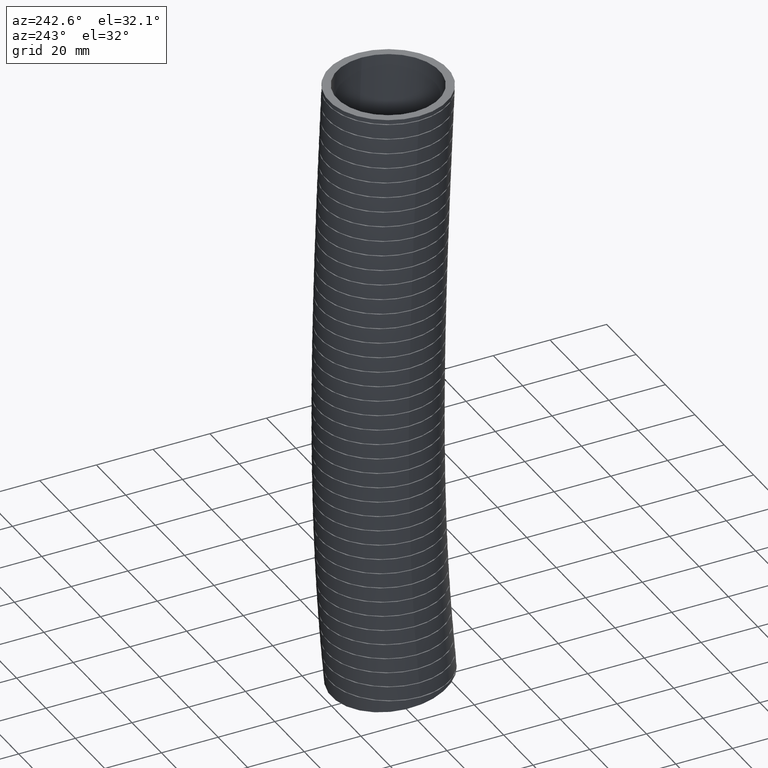
[diagram: clean part render]
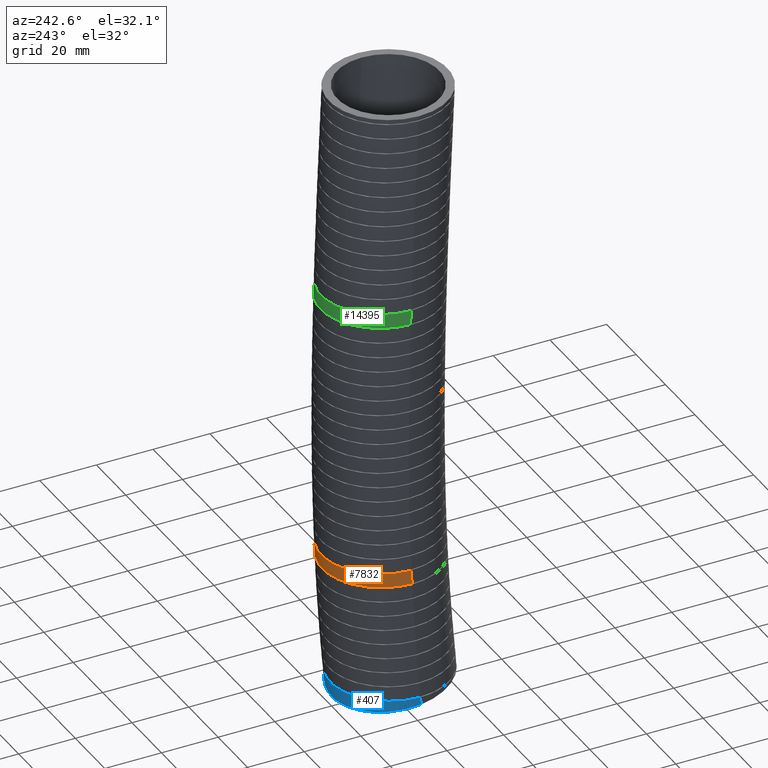
[diagram: same view with three faces highlighted in distinct colors, each labeled with its STEP entity id]
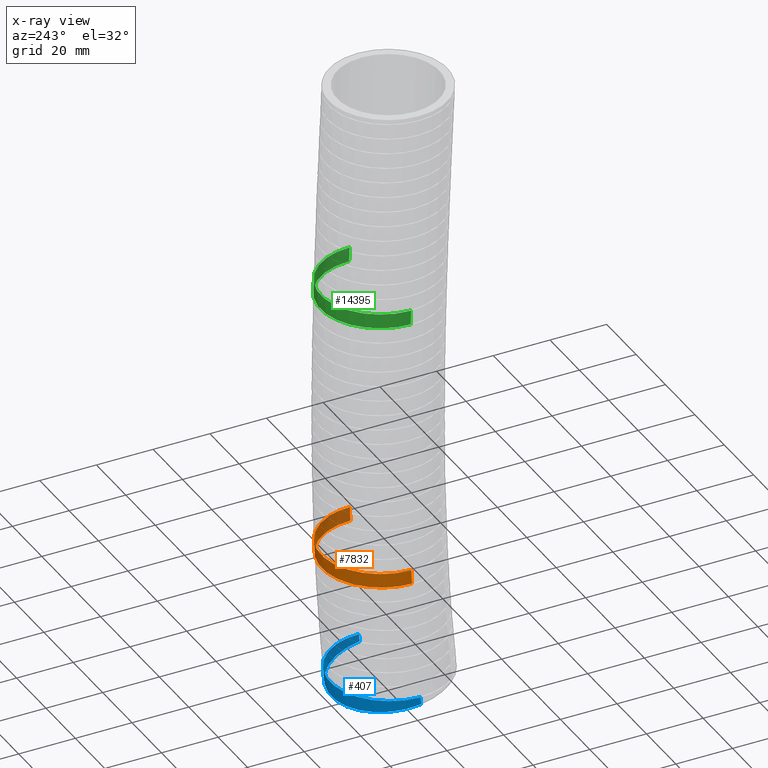
[diagram: x-ray of the same camera — body ghosted, the three highlighted faces saturated]
A machine part, auxiliary view with three faces highlighted in distinct colors.
The next image is the same camera in x-ray (body ghosted, the three faces saturated) — at least one of them is partly hidden behind the body in this view.
Their STEP definitions:

[orange] entity #7832 — the highlighted face is a freeform B-spline surface patch.
#7832 = ADVANCED_FACE ( 'NONE', ( #16222 ), #16282, .T. ) ;
#7836 = EDGE_LOOP ( 'NONE', ( #7838, #7840, #7843, #7845 ) ) ;
#7838 = ORIENTED_EDGE ( 'NONE', *, *, #13592, .F. ) ;
#7840 = ORIENTED_EDGE ( 'NONE', *, *, #7841, .T. ) ;
#7841 = EDGE_CURVE ( 'NONE', #13587, #13596, #16365, .T. ) ;
#7843 = ORIENTED_EDGE ( 'NONE', *, *, #13569, .T. ) ;
#7845 = ORIENTED_EDGE ( 'NONE', *, *, #7847, .T. ) ;
#7847 = EDGE_CURVE ( 'NONE', #13591, #13585, #16391, .T. ) ;
#13569 = EDGE_CURVE ( 'NONE', #13596, #13591, #19525, .T. ) ;
#13585 = VERTEX_POINT ( 'NONE', #19663 ) ;
#13587 = VERTEX_POINT ( 'NONE', #19662 ) ;
#13591 = VERTEX_POINT ( 'NONE', #19776 ) ;
#13592 = EDGE_CURVE ( 'NONE', #13587, #13585, #19774, .T. ) ;
#13596 = VERTEX_POINT ( 'NONE', #19775 ) ;
#16222 = FACE_OUTER_BOUND ( 'NONE', #7836, .T. ) ;
#16279 = CARTESIAN_POINT ( 'NONE',  ( 0.8249999999999999600, 0.1896261967179030400, -4.274418168908688600 ) ) ;
#16280 = CARTESIAN_POINT ( 'NONE',  ( 0.8249999999999999600, 0.07111375611842187000, -1.602995453545504200 ) ) ;
#16281 = CARTESIAN_POINT ( 'NONE',  ( 0.8249999999999999600, 0.0000000000000000000, 0.0000000000000000000 ) ) ;
#16282 =( BOUNDED_SURFACE ( )  B_SPLINE_SURFACE ( 3, 3, ( 
 ( #16281, #16280, #16279, #16324, #16323, #16322 ),
 ( #16321, #16320, #16319, #16318, #16317, #16316 ),
 ( #16315, #16314, #16313, #16312, #16311, #16310 ),
 ( #16309, #16308, #16307, #16306, #16305, #16304 ),
 ( #16303, #16302, #16301, #16300, #16299, #16298 ),
 ( #16297, #16296, #16295, #16294, #16293, #16292 ),
 ( #16291, #16290, #16289, #16288, #16287, #16286 ) ),
 .UNSPECIFIED., .F., .F., .F. ) 
 B_SPLINE_SURFACE_WITH_KNOTS ( ( 4, 3, 4 ),
 ( 4, 1, 1, 4 ),
 ( 0.0000000000000000000, 0.5000000000000000000, 1.000000000000000000 ),
 ( 0.0000000000000000000, 0.5600000000000000500, 0.9332507570714188000, 1.000000000000000000 ),
 .UNSPECIFIED. ) 
 GEOMETRIC_REPRESENTATION_ITEM ( )  RATIONAL_B_SPLINE_SURFACE ( (
 ( 1.000000000000000000, 1.000000000000000000, 1.000000000000000000, 1.000000000000000000, 1.000000000000000000, 1.000000000000000000),
 ( 0.3333333333333333100, 0.3333333333333333100, 0.3333333333333333100, 0.3333333333333333100, 0.3333333333333333100, 0.3333333333333333100),
 ( 0.3333333333333333100, 0.3333333333333333100, 0.3333333333333333100, 0.3333333333333333100, 0.3333333333333333100, 0.3333333333333333100),
 ( 1.000000000000000000, 1.000000000000000000, 1.000000000000000000, 1.000000000000000000, 1.000000000000000000, 1.000000000000000000),
 ( 0.3333333333333333100, 0.3333333333333333100, 0.3333333333333333100, 0.3333333333333333100, 0.3333333333333333100, 0.3333333333333333100),
 ( 0.3333333333333333100, 0.3333333333333333100, 0.3333333333333333100, 0.3333333333333333100, 0.3333333333333333100, 0.3333333333333333100),
 ( 1.000000000000000000, 1.000000000000000000, 1.000000000000000000, 1.000000000000000000, 1.000000000000000000, 1.000000000000000000) ) ) 
 REPRESENTATION_ITEM ( '' )  SURFACE ( )  );
#16286 = CARTESIAN_POINT ( 'NONE',  ( 0.8249999999999999600, -0.03000000000000003000, -8.570000000000000300 ) ) ;
#16287 = CARTESIAN_POINT ( 'NONE',  ( 0.8250000000000000700, -0.01276117587204244800, -8.380024330009550900 ) ) ;
#16288 = CARTESIAN_POINT ( 'NONE',  ( 0.8250000000000000700, 0.1008743094684736900, -7.127736047350903300 ) ) ;
#16289 = CARTESIAN_POINT ( 'NONE',  ( 0.8249999999999999600, 0.1896261967179030400, -4.274418168908688600 ) ) ;
#16290 = CARTESIAN_POINT ( 'NONE',  ( 0.8249999999999999600, 0.07111375611842187000, -1.602995453545504200 ) ) ;
#16291 = CARTESIAN_POINT ( 'NONE',  ( 0.8249999999999999600, 0.0000000000000000000, 0.0000000000000000000 ) ) ;
#16292 = CARTESIAN_POINT ( 'NONE',  ( 0.8249999999999999600, 1.605025278502830500, -8.791793459454378700 ) ) ;
#16293 = CARTESIAN_POINT ( 'NONE',  ( 0.8250000000000000700, 1.623069247624891800, -8.593385647221989400 ) ) ;
#16294 = CARTESIAN_POINT ( 'NONE',  ( 0.8250000000000000700, 1.742012115968760700, -7.285514073672365100 ) ) ;
#16295 = CARTESIAN_POINT ( 'NONE',  ( 0.8250000000000000700, 1.841918619586391700, -4.312596098999357300 ) ) ;
#16296 = CARTESIAN_POINT ( 'NONE',  ( 0.8250000000000000700, 1.721973462232933500, -1.617312969039488500 ) ) ;
#16297 = CARTESIAN_POINT ( 'NONE',  ( 0.8249999999999999600, 1.649999999999999900, 0.0000000000000000000 ) ) ;
#16298 = CARTESIAN_POINT ( 'NONE',  ( -0.8249999999999997300, 1.605025278502830500, -8.791793459454378700 ) ) ;
#16299 = CARTESIAN_POINT ( 'NONE',  ( -0.8249999999999997300, 1.623069247624891800, -8.593385647221989400 ) ) ;
#16300 = CARTESIAN_POINT ( 'NONE',  ( -0.8249999999999997300, 1.742012115968760700, -7.285514073672365100 ) ) ;
#16301 = CARTESIAN_POINT ( 'NONE',  ( -0.8249999999999999600, 1.841918619586391700, -4.312596098999357300 ) ) ;
#16302 = CARTESIAN_POINT ( 'NONE',  ( -0.8249999999999999600, 1.721973462232933500, -1.617312969039488500 ) ) ;
#16303 = CARTESIAN_POINT ( 'NONE',  ( -0.8249999999999997300, 1.649999999999999900, 0.0000000000000000000 ) ) ;
#16304 = CARTESIAN_POINT ( 'NONE',  ( -0.8249999999999999600, -0.02999999999999993300, -8.570000000000000300 ) ) ;
#16305 = CARTESIAN_POINT ( 'NONE',  ( -0.8250000000000000700, -0.01276117587204234900, -8.380024330009550900 ) ) ;
#16306 = CARTESIAN_POINT ( 'NONE',  ( -0.8250000000000000700, 0.1008743094684737700, -7.127736047350903300 ) ) ;
#16307 = CARTESIAN_POINT ( 'NONE',  ( -0.8249999999999999600, 0.1896261967179031200, -4.274418168908688600 ) ) ;
#16308 = CARTESIAN_POINT ( 'NONE',  ( -0.8249999999999999600, 0.07111375611842195300, -1.602995453545504200 ) ) ;
#16309 = CARTESIAN_POINT ( 'NONE',  ( -0.8249999999999999600, 1.010333609296566300E-016, 0.0000000000000000000 ) ) ;
#16310 = CARTESIAN_POINT ( 'NONE',  ( -0.8250000000000000700, -1.665025278502830100, -8.348206540545621800 ) ) ;
#16311 = CARTESIAN_POINT ( 'NONE',  ( -0.8250000000000000700, -1.648591599368976800, -8.166663012797107200 ) ) ;
#16312 = CARTESIAN_POINT ( 'NONE',  ( -0.8250000000000000700, -1.540263497031813400, -6.969958021029444100 ) ) ;
#16313 = CARTESIAN_POINT ( 'NONE',  ( -0.8250000000000002900, -1.462666226150585200, -4.236240238818020000 ) ) ;
#16314 = CARTESIAN_POINT ( 'NONE',  ( -0.8250000000000002900, -1.579745949996089300, -1.588677938051519200 ) ) ;
#16315 = CARTESIAN_POINT ( 'NONE',  ( -0.8250000000000000700, -1.649999999999999900, 0.0000000000000000000 ) ) ;
#16316 = CARTESIAN_POINT ( 'NONE',  ( 0.8249999999999999600, -1.665025278502830100, -8.348206540545621800 ) ) ;
#16317 = CARTESIAN_POINT ( 'NONE',  ( 0.8250000000000000700, -1.648591599368976800, -8.166663012797107200 ) ) ;
#16318 = CARTESIAN_POINT ( 'NONE',  ( 0.8250000000000000700, -1.540263497031813400, -6.969958021029444100 ) ) ;
#16319 = CARTESIAN_POINT ( 'NONE',  ( 0.8250000000000000700, -1.462666226150585200, -4.236240238818020000 ) ) ;
#16320 = CARTESIAN_POINT ( 'NONE',  ( 0.8250000000000000700, -1.579745949996089300, -1.588677938051519200 ) ) ;
#16321 = CARTESIAN_POINT ( 'NONE',  ( 0.8249999999999999600, -1.649999999999999900, 0.0000000000000000000 ) ) ;
#16322 = CARTESIAN_POINT ( 'NONE',  ( 0.8249999999999999600, -0.03000000000000003000, -8.570000000000000300 ) ) ;
#16323 = CARTESIAN_POINT ( 'NONE',  ( 0.8250000000000000700, -0.01276117587204244800, -8.380024330009550900 ) ) ;
#16324 = CARTESIAN_POINT ( 'NONE',  ( 0.8250000000000000700, 0.1008743094684736900, -7.127736047350903300 ) ) ;
#16325 = CARTESIAN_POINT ( 'NONE',  ( 0.5015630338493277700, 0.7610431903923403600, -6.577109260800418700 ) ) ;
#16326 = CARTESIAN_POINT ( 'NONE',  ( 0.4797999993160702000, 0.7771082331637267900, -6.577109260800419600 ) ) ;
#16327 = CARTESIAN_POINT ( 'NONE',  ( 0.4125757330802181100, 0.8218540262533465800, -6.577109260800419600 ) ) ;
#16328 = CARTESIAN_POINT ( 'NONE',  ( 0.3651772622123089500, 0.8471340790848608200, -6.577109260800418700 ) ) ;
#16329 = CARTESIAN_POINT ( 'NONE',  ( 0.2901463301722898000, 0.8781230911390300900, -6.577109260800417800 ) ) ;
#16330 = CARTESIAN_POINT ( 'NONE',  ( 0.2643867754212952400, 0.8873021468566946200, -6.577109260800424000 ) ) ;
#16331 = CARTESIAN_POINT ( 'NONE',  ( 0.2126376531431560500, 0.9029176081877710000, -6.577109260800423100 ) ) ;
#16332 = CARTESIAN_POINT ( 'NONE',  ( 0.1865261797931848100, 0.9094138325705577500, -6.577109260800420500 ) ) ;
#16333 = CARTESIAN_POINT ( 'NONE',  ( 0.1338384933706100200, 0.9198335601423057700, -6.577109260800419600 ) ) ;
#16334 = CARTESIAN_POINT ( 'NONE',  ( 0.1072622691594013700, 0.9237570016698003500, -6.577109260800418700 ) ) ;
#16335 = CARTESIAN_POINT ( 'NONE',  ( 0.05364066771072822900, 0.9290067322219407500, -6.577109260800420500 ) ) ;
#16336 = CARTESIAN_POINT ( 'NONE',  ( 0.02651115735160799700, 0.9303327110459442800, -6.577109260800418700 ) ) ;
#16337 = CARTESIAN_POINT ( 'NONE',  ( -0.05505379261390818500, 0.9302658176835646400, -6.577109260800419600 ) ) ;
#16338 = CARTESIAN_POINT ( 'NONE',  ( -0.1085799834340599900, 0.9249026066251737600, -6.577109260800417800 ) ) ;
#16339 = CARTESIAN_POINT ( 'NONE',  ( -0.1876377470520832800, 0.9091559227049129700, -6.577109260800423100 ) ) ;
#16340 = CARTESIAN_POINT ( 'NONE',  ( -0.2137835794033271000, 0.9026139916393660600, -6.577109260800421400 ) ) ;
#16341 = CARTESIAN_POINT ( 'NONE',  ( -0.2656509320282983700, 0.8868765076451514700, -6.577109260800419600 ) ) ;
#16342 = CARTESIAN_POINT ( 'NONE',  ( -0.2913637607312004100, 0.8776629439690028000, -6.577109260800417800 ) ) ;
#16343 = CARTESIAN_POINT ( 'NONE',  ( -0.3661635864589873300, 0.8466383723219197400, -6.577109260800417800 ) ) ;
#16344 = CARTESIAN_POINT ( 'NONE',  ( -0.4135217408212940000, 0.8213163438034693000, -6.577109260800424000 ) ) ;
#16345 = CARTESIAN_POINT ( 'NONE',  ( -0.4695914476548439500, 0.7838789692804071200, -6.577109260800423100 ) ) ;
#16346 = CARTESIAN_POINT ( 'NONE',  ( -0.4806475858012709300, 0.7760996560592312600, -6.577109260800418700 ) ) ;
#16347 = CARTESIAN_POINT ( 'NONE',  ( -0.5024386696966084400, 0.7599470224197235600, -6.577109260800417800 ) ) ;
#16348 = CARTESIAN_POINT ( 'NONE',  ( -0.5131977589897831500, 0.7515523065082000400, -6.577109260800420500 ) ) ;
#16349 = CARTESIAN_POINT ( 'NONE',  ( -0.5446625793226984600, 0.7257254753338061600, -6.577109260800420500 ) ) ;
#16350 = CARTESIAN_POINT ( 'NONE',  ( -0.5646402701267666500, 0.7075991858022346900, -6.577109260800417800 ) ) ;
#16351 = CARTESIAN_POINT ( 'NONE',  ( -0.6216602719811480400, 0.6505710473070667200, -6.577109260800419600 ) ) ;
#16352 = CARTESIAN_POINT ( 'NONE',  ( -0.6558174596290606800, 0.6090453447713166700, -6.577109260800424900 ) ) ;
#16353 = CARTESIAN_POINT ( 'NONE',  ( -0.6935450197028449900, 0.5526192659557758200, -6.577109260800425800 ) ) ;
#16354 = CARTESIAN_POINT ( 'NONE',  ( -0.7008454705314644000, 0.5410926823040930200, -6.577109260800424900 ) ) ;
#16355 = CARTESIAN_POINT ( 'NONE',  ( -0.7147825549417454700, 0.5178361066397183500, -6.577109260800425800 ) ) ;
#16356 = CARTESIAN_POINT ( 'NONE',  ( -0.7214403315805560900, 0.5060761250114616000, -6.577109260800418700 ) ) ;
#16357 = CARTESIAN_POINT ( 'NONE',  ( -0.7404969552594333800, 0.4704077055420399200, -6.577109260800421400 ) ) ;
#16358 = CARTESIAN_POINT ( 'NONE',  ( -0.7634655566319035200, 0.4218157112875992600, -6.577109260800418700 ) ) ;
#16359 = CARTESIAN_POINT ( 'NONE',  ( -0.7816111606549898100, 0.3711798650167532600, -6.577109260800421400 ) ) ;
#16360 = CARTESIAN_POINT ( 'NONE',  ( -0.7973041188299181400, 0.3195046557110255400, -6.577109260800419600 ) ) ;
#16361 = CARTESIAN_POINT ( 'NONE',  ( -0.8039483331763328500, 0.2929968108778703300, -6.577109260800423100 ) ) ;
#16362 = CARTESIAN_POINT ( 'NONE',  ( -0.8197771938615270300, 0.2132878583865153200, -6.577109260800421400 ) ) ;
#16363 = CARTESIAN_POINT ( 'NONE',  ( -0.8249999999999999600, 0.1598097313817700100, -6.577109260800418700 ) ) ;
#16364 = CARTESIAN_POINT ( 'NONE',  ( -0.8250000000000000700, 0.1059995788176862500, -6.577109260800419600 ) ) ;
#16365 = B_SPLINE_CURVE_WITH_KNOTS ( 'NONE', 3,
 ( #16364, #16363, #16362, #16361, #16360, #16359, #16358, #16357, #16356, #16355, #16354, #16353, #16352, #16351, #16350, #16349, #16348, #16347, #16346, #16345, #16344, #16343, #16342, #16341, #16340, #16339, #16338, #16337, #16336, #16335, #16334, #16333, #16332, #16331, #16330, #16329, #16328, #16327, #16326, #16325, #16409, #16408, #16407, #16406, #16405, #16404, #16403, #16402, #16401, #16400, #16399, #16398, #16397, #16396, #16395 ),
 .UNSPECIFIED., .F., .F.,
 ( 4, 2, 2, 1, 2, 2, 2, 2, 2, 2, 2, 2, 2, 2, 2, 2, 2, 2, 2, 2, 2, 2, 2, 2, 2, 2, 2, 4 ),
 ( 0.06548745380484465000, 0.06957952998306242400, 0.07162556807217131100, 0.07367160616128019800, 0.07571764425038908500, 0.07674066329494352900, 0.07776368233949798600, 0.08185575851771576000, 0.08390179660682464700, 0.08492481565137909000, 0.08594783469593353400, 0.09003991087415129400, 0.09208594896326016700, 0.09413198705236905400, 0.09822406323058680000, 0.1002701013196956900, 0.1023161394088045700, 0.1043621774979134500, 0.1064082155870223200, 0.1105002917652400900, 0.1125463298543489800, 0.1145923679434578700, 0.1186844441216756300, 0.1207304822107845000, 0.1227765202998933900, 0.1248225583890022700, 0.1268685964781111600, 0.1309606726563289400 ),
 .UNSPECIFIED. ) ;
#16366 = CARTESIAN_POINT ( 'NONE',  ( 0.05346264456430679200, 0.9205550567603062500, -6.776913285008965300 ) ) ;
#16367 = CARTESIAN_POINT ( 'NONE',  ( 0.1073472820214400300, 0.9152816566117834000, -6.776913285008967100 ) ) ;
#16368 = CARTESIAN_POINT ( 'NONE',  ( 0.1339918727430417000, 0.9113394207567416800, -6.776913285008967100 ) ) ;
#16369 = CARTESIAN_POINT ( 'NONE',  ( 0.2130526283655064200, 0.8956845401391168000, -6.776913285008967100 ) ) ;
#16370 = CARTESIAN_POINT ( 'NONE',  ( 0.2646043497315628800, 0.8801813149180162100, -6.776913285008967100 ) ) ;
#16371 = CARTESIAN_POINT ( 'NONE',  ( 0.3652998592721543600, 0.8386160898032414300, -6.776913285008967100 ) ) ;
#16372 = CARTESIAN_POINT ( 'NONE',  ( 0.4128072301012858400, 0.8132243766379988500, -6.776913285008970600 ) ) ;
#16373 = CARTESIAN_POINT ( 'NONE',  ( 0.4798826962892757700, 0.7685503796631838500, -6.776913285008970600 ) ) ;
#16374 = CARTESIAN_POINT ( 'NONE',  ( 0.5015441903438415700, 0.7525507542688899500, -6.776913285008969700 ) ) ;
#16375 = CARTESIAN_POINT ( 'NONE',  ( 0.5434417152859843900, 0.7182848707414740700, -6.776913285008969700 ) ) ;
#16377 = CARTESIAN_POINT ( 'NONE',  ( 0.5637319407530614300, 0.6999457019102182100, -6.776913285008968800 ) ) ;
#16378 = CARTESIAN_POINT ( 'NONE',  ( 0.6211400963224057400, 0.6426712675649151100, -6.776913285008967100 ) ) ;
#16379 = CARTESIAN_POINT ( 'NONE',  ( 0.6552657450939311000, 0.6011881456553586100, -6.776913285008970600 ) ) ;
#16380 = CARTESIAN_POINT ( 'NONE',  ( 0.7002923051419207600, 0.5340591928905922300, -6.776913285008968800 ) ) ;
#16381 = CARTESIAN_POINT ( 'NONE',  ( 0.7143078331731702600, 0.5107823699393341200, -6.776913285008968800 ) ) ;
#16382 = CARTESIAN_POINT ( 'NONE',  ( 0.7400075457964295800, 0.4628587503605347500, -6.776913285008968800 ) ) ;
#16383 = CARTESIAN_POINT ( 'NONE',  ( 0.7515742883998525200, 0.4384503052148305300, -6.776913285008970600 ) ) ;
#16384 = CARTESIAN_POINT ( 'NONE',  ( 0.7825460370721687400, 0.3639271342097535900, -6.776913285008971500 ) ) ;
#16385 = CARTESIAN_POINT ( 'NONE',  ( 0.7982578496490990700, 0.3125268552613358300, -6.776913285008968800 ) ) ;
#16386 = CARTESIAN_POINT ( 'NONE',  ( 0.8142472262892248600, 0.2327885135133346800, -6.776913285008969700 ) ) ;
#16387 = CARTESIAN_POINT ( 'NONE',  ( 0.8182888460382704600, 0.2057715311598692400, -6.776913285008971500 ) ) ;
#16388 = CARTESIAN_POINT ( 'NONE',  ( 0.8236523920727524300, 0.1517367058910369100, -6.776913285008972400 ) ) ;
#16389 = CARTESIAN_POINT ( 'NONE',  ( 0.8249999999999999600, 0.1246081059734454700, -6.776913285010373900 ) ) ;
#16390 = CARTESIAN_POINT ( 'NONE',  ( 0.8250000000000000700, 0.09736719846713080800, -6.776913285010373900 ) ) ;
#16391 = B_SPLINE_CURVE_WITH_KNOTS ( 'NONE', 3,
 ( #16390, #16389, #16388, #16387, #16386, #16385, #16384, #16383, #16382, #16381, #16380, #16379, #16378, #16377, #16375, #16374, #16373, #16372, #16371, #16370, #16369, #16368, #16367, #16366, #16454, #16453, #16452, #16451, #16450, #16449, #16448, #16447, #16446, #16445, #16444, #16443, #16442, #16441, #16440, #16439, #16438, #16437, #16436, #16435, #16434, #16433, #16431, #16430, #16429, #16428, #16427, #16426, #16425, #16424, #16423 ),
 .UNSPECIFIED., .F., .F.,
 ( 4, 2, 2, 2, 2, 2, 2, 2, 2, 2, 2, 2, 2, 2, 2, 2, 2, 2, 2, 1, 2, 2, 2, 2, 2, 2, 2, 4 ),
 ( 0.0000000000000000000, 0.002068586104812926900, 0.004137172209625853700, 0.008274344419251709200, 0.01034293052406463700, 0.01241151662887756600, 0.01654868883850342500, 0.01861727494331634800, 0.02068586104812927100, 0.02482303325775511400, 0.02896020546738095600, 0.03102879157219387600, 0.03309737767700679500, 0.03723454988663264100, 0.03930313599144556100, 0.04137172209625848000, 0.04550889430588431200, 0.04654318735829076500, 0.04757748041069722500, 0.04964606651551012300, 0.05171465262032302900, 0.05274894567272948900, 0.05378323872513594100, 0.05792041093476177300, 0.05998899703957469300, 0.06102329009198115300, 0.06205758314438760600, 0.06619475535401343800 ),
 .UNSPECIFIED. ) ;
#16395 = CARTESIAN_POINT ( 'NONE',  ( 0.8250000000000000700, 0.1059995788175558400, -6.577109260802026300 ) ) ;
#16396 = CARTESIAN_POINT ( 'NONE',  ( 0.8250000000000001800, 0.1604748142940367900, -6.577109260802024500 ) ) ;
#16397 = CARTESIAN_POINT ( 'NONE',  ( 0.8196478527265914600, 0.2143843864703375000, -6.577109260800424900 ) ) ;
#16398 = CARTESIAN_POINT ( 'NONE',  ( 0.8036230935779424800, 0.2944037483195262000, -6.577109260800423100 ) ) ;
#16399 = CARTESIAN_POINT ( 'NONE',  ( 0.7969697896074435800, 0.3207397074203348600, -6.577109260800424000 ) ) ;
#16400 = CARTESIAN_POINT ( 'NONE',  ( 0.7812351038867829700, 0.3722778258448459200, -6.577109260800421400 ) ) ;
#16401 = CARTESIAN_POINT ( 'NONE',  ( 0.7721386518318255100, 0.3975568219299784300, -6.577109260800420500 ) ) ;
#16402 = CARTESIAN_POINT ( 'NONE',  ( 0.7515124754480814200, 0.4471446342131622000, -6.577109260800421400 ) ) ;
#16403 = CARTESIAN_POINT ( 'NONE',  ( 0.7399828003670325700, 0.4714534700469790200, -6.577109260800419600 ) ) ;
#16404 = CARTESIAN_POINT ( 'NONE',  ( 0.7144446022540864600, 0.5190827901639408800, -6.577109260800420500 ) ) ;
#16405 = CARTESIAN_POINT ( 'NONE',  ( 0.7003510476258061300, 0.5425153998518371700, -6.577109260800418700 ) ) ;
#16406 = CARTESIAN_POINT ( 'NONE',  ( 0.6551139722668730700, 0.6099411733821710200, -6.577109260800418700 ) ) ;
#16407 = CARTESIAN_POINT ( 'NONE',  ( 0.6209435292272618100, 0.6513935033617765900, -6.577109260800421400 ) ) ;
#16408 = CARTESIAN_POINT ( 'NONE',  ( 0.5637713454263060300, 0.7084137089817729200, -6.577109260800421400 ) ) ;
#16409 = CARTESIAN_POINT ( 'NONE',  ( 0.5437208949637465400, 0.7265546531264207600, -6.577109260800418700 ) ) ;
#16423 = CARTESIAN_POINT ( 'NONE',  ( -0.8250000000000000700, 0.09736719846725971900, -6.776913285008969700 ) ) ;
#16424 = CARTESIAN_POINT ( 'NONE',  ( -0.8249999999999998400, 0.1513881703733822000, -6.776913285008968800 ) ) ;
#16425 = CARTESIAN_POINT ( 'NONE',  ( -0.8197380795497347700, 0.2048402453191569500, -6.776913285008974200 ) ) ;
#16426 = CARTESIAN_POINT ( 'NONE',  ( -0.8066214873004415900, 0.2709483487857845000, -6.776913285008971500 ) ) ;
#16427 = CARTESIAN_POINT ( 'NONE',  ( -0.8036682679517329600, 0.2841343019656336100, -6.776913285008967100 ) ) ;
#16428 = CARTESIAN_POINT ( 'NONE',  ( -0.7970909296646171400, 0.3104336734512523300, -6.776913285008969700 ) ) ;
#16429 = CARTESIAN_POINT ( 'NONE',  ( -0.7934550571607603700, 0.3235832592704356300, -6.776913285008970600 ) ) ;
#16430 = CARTESIAN_POINT ( 'NONE',  ( -0.7816273020838300200, 0.3625708900430387200, -6.776913285008968800 ) ) ;
#16431 = CARTESIAN_POINT ( 'NONE',  ( -0.7725194171966186500, 0.3879791723731523300, -6.776913285008961700 ) ) ;
#16433 = CARTESIAN_POINT ( 'NONE',  ( -0.7416367114857788100, 0.4625056634931651900, -6.776913285008962600 ) ) ;
#16434 = CARTESIAN_POINT ( 'NONE',  ( -0.7163367328919707500, 0.5099416900636815100, -6.776913285008974200 ) ) ;
#16435 = CARTESIAN_POINT ( 'NONE',  ( -0.6786635672693153200, 0.5663505654521302500, -6.776913285008974200 ) ) ;
#16436 = CARTESIAN_POINT ( 'NONE',  ( -0.6708049011017154200, 0.5775098764667797600, -6.776913285008969700 ) ) ;
#16437 = CARTESIAN_POINT ( 'NONE',  ( -0.6546363958247148900, 0.5993036317727848900, -6.776913285008970600 ) ) ;
#16438 = CARTESIAN_POINT ( 'NONE',  ( -0.6463123615615664600, 0.6099619635500053100, -6.776913285008970600 ) ) ;
#16439 = CARTESIAN_POINT ( 'NONE',  ( -0.6206336646057563100, 0.6412340062493160400, -6.776913285008969700 ) ) ;
#16440 = CARTESIAN_POINT ( 'NONE',  ( -0.5845144831687688600, 0.6810588379364604900, -6.776913285008969700 ) ) ;
#16441 = CARTESIAN_POINT ( 'NONE',  ( -0.5446851174679978600, 0.7171926063246157900, -6.776913285008965300 ) ) ;
#16442 = CARTESIAN_POINT ( 'NONE',  ( -0.5134008439386637000, 0.7428879615903167800, -6.776913285008965300 ) ) ;
#16443 = CARTESIAN_POINT ( 'NONE',  ( -0.5027369598414919100, 0.7512185022840030000, -6.776913285008966200 ) ) ;
#16444 = CARTESIAN_POINT ( 'NONE',  ( -0.4809288187717532500, 0.7674016864662376300, -6.776913285008967100 ) ) ;
#16445 = CARTESIAN_POINT ( 'NONE',  ( -0.4697736834701840600, 0.7752590534158547700, -6.776913285008969700 ) ) ;
#16446 = CARTESIAN_POINT ( 'NONE',  ( -0.4134113765150376200, 0.8129137398290525700, -6.776913285008968800 ) ) ;
#16447 = CARTESIAN_POINT ( 'NONE',  ( -0.3659940631115326500, 0.8382248729890596800, -6.776913285008975100 ) ) ;
#16448 = CARTESIAN_POINT ( 'NONE',  ( -0.2914606171258972100, 0.8691457727555421700, -6.776913285008975100 ) ) ;
#16449 = CARTESIAN_POINT ( 'NONE',  ( -0.2660441585944424700, 0.8782700362511126600, -6.776913285008969700 ) ) ;
#16450 = CARTESIAN_POINT ( 'NONE',  ( -0.2140308611527365900, 0.8940778345816109400, -6.776913285008969700 ) ) ;
#16451 = CARTESIAN_POINT ( 'NONE',  ( -0.1876567687061553300, 0.9006827517589922600, -6.776913285008967100 ) ) ;
#16452 = CARTESIAN_POINT ( 'NONE',  ( -0.1083702954592816200, 0.9164721532162685100, -6.776913285008968800 ) ) ;
#16453 = CARTESIAN_POINT ( 'NONE',  ( -0.05492080850976628600, 0.9217856512254518600, -6.776913285008971500 ) ) ;
#16454 = CARTESIAN_POINT ( 'NONE',  ( 0.02614858265114372900, 0.9218715350037608400, -6.776913285008968800 ) ) ;
#19518 = CARTESIAN_POINT ( 'NONE',  ( 0.8250000000000000700, 0.09736719846713080800, -6.776913285010373900 ) ) ;
#19519 = CARTESIAN_POINT ( 'NONE',  ( 0.8250000000000000700, 0.1004208070561631300, -6.710319434017663700 ) ) ;
#19520 = CARTESIAN_POINT ( 'NONE',  ( 0.8250000000000000700, 0.1032965145347914800, -6.643718018086964600 ) ) ;
#19521 = CARTESIAN_POINT ( 'NONE',  ( 0.8250000000000000700, 0.1059995788175558400, -6.577109260802026300 ) ) ;
#19525 = B_SPLINE_CURVE_WITH_KNOTS ( 'NONE', 3,
 ( #19521, #19520, #19519, #19518 ),
 .UNSPECIFIED., .F., .F.,
 ( 4, 4 ),
 ( 0.7668172210112910200, 0.7901709326810051300 ),
 .UNSPECIFIED. ) ;
#19662 = CARTESIAN_POINT ( 'NONE',  ( -0.8250000000000000700, 0.1059995788176862500, -6.577109260800419600 ) ) ;
#19663 = CARTESIAN_POINT ( 'NONE',  ( -0.8250000000000000700, 0.09736719846725971900, -6.776913285008969700 ) ) ;
#19769 = CARTESIAN_POINT ( 'NONE',  ( -0.8250000000000000700, 0.09736719846725971900, -6.776913285008969700 ) ) ;
#19770 = CARTESIAN_POINT ( 'NONE',  ( -0.8249999999999999600, 0.1004208070562282700, -6.710319434016190200 ) ) ;
#19771 = CARTESIAN_POINT ( 'NONE',  ( -0.8249999999999999600, 0.1032965145348569000, -6.643718018085423600 ) ) ;
#19772 = CARTESIAN_POINT ( 'NONE',  ( -0.8250000000000000700, 0.1059995788176862500, -6.577109260800419600 ) ) ;
#19774 = B_SPLINE_CURVE_WITH_KNOTS ( 'NONE', 3,
 ( #19772, #19771, #19770, #19769 ),
 .UNSPECIFIED., .F., .F.,
 ( 4, 4 ),
 ( 0.7668172210111029500, 0.7901709326808408200 ),
 .UNSPECIFIED. ) ;
#19775 = CARTESIAN_POINT ( 'NONE',  ( 0.8250000000000000700, 0.1059995788175558400, -6.577109260802026300 ) ) ;
#19776 = CARTESIAN_POINT ( 'NONE',  ( 0.8250000000000000700, 0.09736719846713080800, -6.776913285010373900 ) ) ;

[blue] entity #407 — the highlighted face is a freeform B-spline surface patch.
#348 = VERTEX_POINT ( 'NONE', #9856 ) ;
#349 = VERTEX_POINT ( 'NONE', #9855 ) ;
#352 = EDGE_CURVE ( 'NONE', #348, #349, #9852, .T. ) ;
#398 = ORIENTED_EDGE ( 'NONE', *, *, #405, .T. ) ;
#400 = ORIENTED_EDGE ( 'NONE', *, *, #401, .T. ) ;
#401 = EDGE_CURVE ( 'NONE', #403, #349, #10198, .T. ) ;
#403 = VERTEX_POINT ( 'NONE', #10227 ) ;
#405 = EDGE_CURVE ( 'NONE', #411, #403, #10224, .T. ) ;
#407 = ADVANCED_FACE ( 'NONE', ( #10226 ), #10239, .T. ) ;
#409 = EDGE_CURVE ( 'NONE', #348, #411, #10318, .T. ) ;
#411 = VERTEX_POINT ( 'NONE', #10320 ) ;
#412 = ORIENTED_EDGE ( 'NONE', *, *, #352, .F. ) ;
#414 = ORIENTED_EDGE ( 'NONE', *, *, #409, .T. ) ;
#417 = EDGE_LOOP ( 'NONE', ( #412, #414, #398, #400 ) ) ;
#9844 = CARTESIAN_POINT ( 'NONE',  ( -0.8249999999999999600, -0.02999999999999978700, -8.570000000000000300 ) ) ;
#9845 = CARTESIAN_POINT ( 'NONE',  ( -0.8249999999999999600, -0.02675382602372886100, -8.534226441927236500 ) ) ;
#9846 = CARTESIAN_POINT ( 'NONE',  ( -0.8249999999999999600, -0.02350765204745778500, -8.498452883854472600 ) ) ;
#9847 = CARTESIAN_POINT ( 'NONE',  ( -0.8249999999999999600, -0.02027293924975433200, -8.462678838414850800 ) ) ;
#9852 = B_SPLINE_CURVE_WITH_KNOTS ( 'NONE', 3,
 ( #9847, #9846, #9845, #9844 ),
 .UNSPECIFIED., .F., .F.,
 ( 4, 4 ),
 ( 0.9874307172158483000, 1.000000000000000000 ),
 .UNSPECIFIED. ) ;
#9855 = CARTESIAN_POINT ( 'NONE',  ( -0.8249999999999999600, -0.02999999999999978700, -8.570000000000000300 ) ) ;
#9856 = CARTESIAN_POINT ( 'NONE',  ( -0.8249999999999999600, -0.02027293924975433200, -8.462678838414850800 ) ) ;
#10194 = DIRECTION ( 'NONE',  ( 1.000000000000000000, 0.0000000000000000000, 0.0000000000000000000 ) ) ;
#10195 = DIRECTION ( 'NONE',  ( 0.0000000000000000000, 0.1344202784571988400, 0.9909244112138369000 ) ) ;
#10196 = CARTESIAN_POINT ( 'NONE',  ( 0.0000000000000000000, -0.03000000000000005400, -8.570000000000000300 ) ) ;
#10197 = AXIS2_PLACEMENT_3D ( 'NONE', #10196, #10195, #10194 ) ;
#10198 = CIRCLE ( 'NONE', #10197, 0.8249999999999999600 ) ;
#10216 = CARTESIAN_POINT ( 'NONE',  ( 0.8249999999999999600, -0.02999999999999988400, -8.570000000000000300 ) ) ;
#10217 = CARTESIAN_POINT ( 'NONE',  ( 0.8249999999999999600, -0.02675382602372895800, -8.534226441927236500 ) ) ;
#10218 = CARTESIAN_POINT ( 'NONE',  ( 0.8249999999999999600, -0.02350765204745788500, -8.498452883854472600 ) ) ;
#10219 = CARTESIAN_POINT ( 'NONE',  ( 0.8249999999999999600, -0.02027293924975451200, -8.462678838414850800 ) ) ;
#10224 = B_SPLINE_CURVE_WITH_KNOTS ( 'NONE', 3,
 ( #10219, #10218, #10217, #10216 ),
 .UNSPECIFIED., .F., .F.,
 ( 4, 4 ),
 ( 0.9874307172158483000, 1.000000000000000000 ),
 .UNSPECIFIED. ) ;
#10226 = FACE_OUTER_BOUND ( 'NONE', #417, .T. ) ;
#10227 = CARTESIAN_POINT ( 'NONE',  ( 0.8249999999999999600, -0.02999999999999988400, -8.570000000000000300 ) ) ;
#10232 = CARTESIAN_POINT ( 'NONE',  ( 0.8249999999999999600, -1.649999999999999900, 0.0000000000000000000 ) ) ;
#10233 = CARTESIAN_POINT ( 'NONE',  ( 0.8249999999999999600, -0.03000000000000003000, -8.570000000000000300 ) ) ;
#10234 = CARTESIAN_POINT ( 'NONE',  ( 0.8250000000000000700, -0.01276117587204244800, -8.380024330009550900 ) ) ;
#10235 = CARTESIAN_POINT ( 'NONE',  ( 0.8250000000000000700, 0.1008743094684736900, -7.127736047350903300 ) ) ;
#10236 = CARTESIAN_POINT ( 'NONE',  ( 0.8249999999999999600, 0.1896261967179030400, -4.274418168908688600 ) ) ;
#10237 = CARTESIAN_POINT ( 'NONE',  ( 0.8249999999999999600, 0.07111375611842187000, -1.602995453545504200 ) ) ;
#10238 = CARTESIAN_POINT ( 'NONE',  ( 0.8249999999999999600, 0.0000000000000000000, 0.0000000000000000000 ) ) ;
#10239 =( BOUNDED_SURFACE ( )  B_SPLINE_SURFACE ( 3, 3, ( 
 ( #10238, #10237, #10236, #10235, #10234, #10233 ),
 ( #10232, #10275, #10274, #10273, #10272, #10271 ),
 ( #10270, #10269, #10268, #10267, #10266, #10265 ),
 ( #10264, #10263, #10262, #10261, #10260, #10259 ),
 ( #10258, #10257, #10256, #10255, #10254, #10253 ),
 ( #10252, #10251, #10250, #10249, #10248, #10247 ),
 ( #10246, #10245, #10244, #10243, #10242, #10241 ) ),
 .UNSPECIFIED., .F., .F., .F. ) 
 B_SPLINE_SURFACE_WITH_KNOTS ( ( 4, 3, 4 ),
 ( 4, 1, 1, 4 ),
 ( 0.0000000000000000000, 0.5000000000000000000, 1.000000000000000000 ),
 ( 0.0000000000000000000, 0.5600000000000000500, 0.9332507570714188000, 1.000000000000000000 ),
 .UNSPECIFIED. ) 
 GEOMETRIC_REPRESENTATION_ITEM ( )  RATIONAL_B_SPLINE_SURFACE ( (
 ( 1.000000000000000000, 1.000000000000000000, 1.000000000000000000, 1.000000000000000000, 1.000000000000000000, 1.000000000000000000),
 ( 0.3333333333333333100, 0.3333333333333333100, 0.3333333333333333100, 0.3333333333333333100, 0.3333333333333333100, 0.3333333333333333100),
 ( 0.3333333333333333100, 0.3333333333333333100, 0.3333333333333333100, 0.3333333333333333100, 0.3333333333333333100, 0.3333333333333333100),
 ( 1.000000000000000000, 1.000000000000000000, 1.000000000000000000, 1.000000000000000000, 1.000000000000000000, 1.000000000000000000),
 ( 0.3333333333333333100, 0.3333333333333333100, 0.3333333333333333100, 0.3333333333333333100, 0.3333333333333333100, 0.3333333333333333100),
 ( 0.3333333333333333100, 0.3333333333333333100, 0.3333333333333333100, 0.3333333333333333100, 0.3333333333333333100, 0.3333333333333333100),
 ( 1.000000000000000000, 1.000000000000000000, 1.000000000000000000, 1.000000000000000000, 1.000000000000000000, 1.000000000000000000) ) ) 
 REPRESENTATION_ITEM ( '' )  SURFACE ( )  );
#10241 = CARTESIAN_POINT ( 'NONE',  ( 0.8249999999999999600, -0.03000000000000003000, -8.570000000000000300 ) ) ;
#10242 = CARTESIAN_POINT ( 'NONE',  ( 0.8250000000000000700, -0.01276117587204244800, -8.380024330009550900 ) ) ;
#10243 = CARTESIAN_POINT ( 'NONE',  ( 0.8250000000000000700, 0.1008743094684736900, -7.127736047350903300 ) ) ;
#10244 = CARTESIAN_POINT ( 'NONE',  ( 0.8249999999999999600, 0.1896261967179030400, -4.274418168908688600 ) ) ;
#10245 = CARTESIAN_POINT ( 'NONE',  ( 0.8249999999999999600, 0.07111375611842187000, -1.602995453545504200 ) ) ;
#10246 = CARTESIAN_POINT ( 'NONE',  ( 0.8249999999999999600, 0.0000000000000000000, 0.0000000000000000000 ) ) ;
#10247 = CARTESIAN_POINT ( 'NONE',  ( 0.8249999999999999600, 1.605025278502830500, -8.791793459454378700 ) ) ;
#10248 = CARTESIAN_POINT ( 'NONE',  ( 0.8250000000000000700, 1.623069247624891800, -8.593385647221989400 ) ) ;
#10249 = CARTESIAN_POINT ( 'NONE',  ( 0.8250000000000000700, 1.742012115968760700, -7.285514073672365100 ) ) ;
#10250 = CARTESIAN_POINT ( 'NONE',  ( 0.8250000000000000700, 1.841918619586391700, -4.312596098999357300 ) ) ;
#10251 = CARTESIAN_POINT ( 'NONE',  ( 0.8250000000000000700, 1.721973462232933500, -1.617312969039488500 ) ) ;
#10252 = CARTESIAN_POINT ( 'NONE',  ( 0.8249999999999999600, 1.649999999999999900, 0.0000000000000000000 ) ) ;
#10253 = CARTESIAN_POINT ( 'NONE',  ( -0.8249999999999997300, 1.605025278502830500, -8.791793459454378700 ) ) ;
#10254 = CARTESIAN_POINT ( 'NONE',  ( -0.8249999999999997300, 1.623069247624891800, -8.593385647221989400 ) ) ;
#10255 = CARTESIAN_POINT ( 'NONE',  ( -0.8249999999999997300, 1.742012115968760700, -7.285514073672365100 ) ) ;
#10256 = CARTESIAN_POINT ( 'NONE',  ( -0.8249999999999999600, 1.841918619586391700, -4.312596098999357300 ) ) ;
#10257 = CARTESIAN_POINT ( 'NONE',  ( -0.8249999999999999600, 1.721973462232933500, -1.617312969039488500 ) ) ;
#10258 = CARTESIAN_POINT ( 'NONE',  ( -0.8249999999999997300, 1.649999999999999900, 0.0000000000000000000 ) ) ;
#10259 = CARTESIAN_POINT ( 'NONE',  ( -0.8249999999999999600, -0.02999999999999993300, -8.570000000000000300 ) ) ;
#10260 = CARTESIAN_POINT ( 'NONE',  ( -0.8250000000000000700, -0.01276117587204234900, -8.380024330009550900 ) ) ;
#10261 = CARTESIAN_POINT ( 'NONE',  ( -0.8250000000000000700, 0.1008743094684737700, -7.127736047350903300 ) ) ;
#10262 = CARTESIAN_POINT ( 'NONE',  ( -0.8249999999999999600, 0.1896261967179031200, -4.274418168908688600 ) ) ;
#10263 = CARTESIAN_POINT ( 'NONE',  ( -0.8249999999999999600, 0.07111375611842195300, -1.602995453545504200 ) ) ;
#10264 = CARTESIAN_POINT ( 'NONE',  ( -0.8249999999999999600, 1.010333609296566300E-016, 0.0000000000000000000 ) ) ;
#10265 = CARTESIAN_POINT ( 'NONE',  ( -0.8250000000000000700, -1.665025278502830100, -8.348206540545621800 ) ) ;
#10266 = CARTESIAN_POINT ( 'NONE',  ( -0.8250000000000000700, -1.648591599368976800, -8.166663012797107200 ) ) ;
#10267 = CARTESIAN_POINT ( 'NONE',  ( -0.8250000000000000700, -1.540263497031813400, -6.969958021029444100 ) ) ;
#10268 = CARTESIAN_POINT ( 'NONE',  ( -0.8250000000000002900, -1.462666226150585200, -4.236240238818020000 ) ) ;
#10269 = CARTESIAN_POINT ( 'NONE',  ( -0.8250000000000002900, -1.579745949996089300, -1.588677938051519200 ) ) ;
#10270 = CARTESIAN_POINT ( 'NONE',  ( -0.8250000000000000700, -1.649999999999999900, 0.0000000000000000000 ) ) ;
#10271 = CARTESIAN_POINT ( 'NONE',  ( 0.8249999999999999600, -1.665025278502830100, -8.348206540545621800 ) ) ;
#10272 = CARTESIAN_POINT ( 'NONE',  ( 0.8250000000000000700, -1.648591599368976800, -8.166663012797107200 ) ) ;
#10273 = CARTESIAN_POINT ( 'NONE',  ( 0.8250000000000000700, -1.540263497031813400, -6.969958021029444100 ) ) ;
#10274 = CARTESIAN_POINT ( 'NONE',  ( 0.8250000000000000700, -1.462666226150585200, -4.236240238818020000 ) ) ;
#10275 = CARTESIAN_POINT ( 'NONE',  ( 0.8250000000000000700, -1.579745949996089300, -1.588677938051519200 ) ) ;
#10276 = CARTESIAN_POINT ( 'NONE',  ( 0.4365052693824144600, 0.6824526081417002800, -8.462678838414852600 ) ) ;
#10277 = CARTESIAN_POINT ( 'NONE',  ( 0.4133095853268960500, 0.6964364986195261700, -8.462678838414856100 ) ) ;
#10278 = CARTESIAN_POINT ( 'NONE',  ( 0.3652473116052921700, 0.7222358615544616200, -8.462678838414852600 ) ) ;
#10279 = CARTESIAN_POINT ( 'NONE',  ( 0.3407136272030351600, 0.7338682154685903800, -8.462678838414849000 ) ) ;
#10280 = CARTESIAN_POINT ( 'NONE',  ( 0.2659641277003824700, 0.7649333084296319200, -8.462678838414850800 ) ) ;
#10281 = CARTESIAN_POINT ( 'NONE',  ( 0.2144756541399007500, 0.7806427789161866100, -8.462678838414849000 ) ) ;
#10282 = CARTESIAN_POINT ( 'NONE',  ( 0.1347216853302872800, 0.7965911692001540500, -8.462678838414847200 ) ) ;
#10283 = CARTESIAN_POINT ( 'NONE',  ( 0.1076132329369112200, 0.8006260045851963900, -8.462678838414847200 ) ) ;
#10284 = CARTESIAN_POINT ( 'NONE',  ( 0.05369627602444605700, 0.8059383815658194300, -8.462678838414845500 ) ) ;
#10285 = CARTESIAN_POINT ( 'NONE',  ( 0.02676166302067816200, 0.8072509424431025800, -8.462678838414845500 ) ) ;
#10286 = CARTESIAN_POINT ( 'NONE',  ( -0.02706076187906075700, 0.8072411566527292200, -8.462678838414850800 ) ) ;
#10287 = CARTESIAN_POINT ( 'NONE',  ( -0.05394857259224014600, 0.8059187433938481700, -8.462678838414847200 ) ) ;
#10288 = CARTESIAN_POINT ( 'NONE',  ( -0.1076769571294444000, 0.8006144747926323700, -8.462678838414847200 ) ) ;
#10289 = CARTESIAN_POINT ( 'NONE',  ( -0.1345998184541590300, 0.7966159272787954900, -8.462678838414847200 ) ) ;
#10290 = CARTESIAN_POINT ( 'NONE',  ( -0.2147532270301164300, 0.7805864957050945300, -8.462678838414847200 ) ) ;
#10291 = CARTESIAN_POINT ( 'NONE',  ( -0.2662977741392162900, 0.7648116370431147200, -8.462678838414852600 ) ) ;
#10292 = CARTESIAN_POINT ( 'NONE',  ( -0.3408798647296392700, 0.7337905776530671000, -8.462678838414850800 ) ) ;
#10293 = CARTESIAN_POINT ( 'NONE',  ( -0.3652814175355495500, 0.7222147328776371600, -8.462678838414857900 ) ) ;
#10294 = CARTESIAN_POINT ( 'NONE',  ( -0.4011774173947913500, 0.7029503334488714800, -8.462678838414854400 ) ) ;
#10295 = CARTESIAN_POINT ( 'NONE',  ( -0.4130574787877529500, 0.6961910379814211200, -8.462678838414856100 ) ) ;
#10296 = CARTESIAN_POINT ( 'NONE',  ( -0.4363735636553092700, 0.6821476143603759600, -8.462678838414852600 ) ) ;
#10297 = CARTESIAN_POINT ( 'NONE',  ( -0.4478136575329543800, 0.6748640636171404600, -8.462678838414843700 ) ) ;
#10298 = CARTESIAN_POINT ( 'NONE',  ( -0.5039452838462575900, 0.6371622237159504400, -8.462678838414847200 ) ) ;
#10299 = CARTESIAN_POINT ( 'NONE',  ( -0.5454607167073389800, 0.6029282335616231700, -8.462678838414850800 ) ) ;
#10300 = CARTESIAN_POINT ( 'NONE',  ( -0.5931368940447687700, 0.5550681903911537400, -8.462678838414850800 ) ) ;
#10301 = CARTESIAN_POINT ( 'NONE',  ( -0.6024593275732989000, 0.5452405258648461700, -8.462678838414850800 ) ) ;
#10302 = CARTESIAN_POINT ( 'NONE',  ( -0.6206712904017165400, 0.5250651145359067600, -8.462678838414850800 ) ) ;
#10303 = CARTESIAN_POINT ( 'NONE',  ( -0.6295808678812033800, 0.5146909528101956100, -8.462678838414847200 ) ) ;
#10304 = CARTESIAN_POINT ( 'NONE',  ( -0.6553861183045430700, 0.4830962124578148700, -8.462678838414850800 ) ) ;
#10305 = CARTESIAN_POINT ( 'NONE',  ( -0.6714283097817895800, 0.4613394846530352600, -8.462678838414861500 ) ) ;
#10306 = CARTESIAN_POINT ( 'NONE',  ( -0.7161727499119818800, 0.3940493917551957700, -8.462678838414857900 ) ) ;
#10307 = CARTESIAN_POINT ( 'NONE',  ( -0.7415250728598865600, 0.3465153530941017500, -8.462678838414850800 ) ) ;
#10308 = CARTESIAN_POINT ( 'NONE',  ( -0.7674627837554026700, 0.2836621284506760100, -8.462678838414850800 ) ) ;
#10309 = CARTESIAN_POINT ( 'NONE',  ( -0.7723656782234488100, 0.2708972569998101000, -8.462678838414850800 ) ) ;
#10310 = CARTESIAN_POINT ( 'NONE',  ( -0.7814826514050056100, 0.2452951162083203100, -8.462678838414847200 ) ) ;
#10311 = CARTESIAN_POINT ( 'NONE',  ( -0.7857107259227491500, 0.2324268452782299000, -8.462678838414841900 ) ) ;
#10312 = CARTESIAN_POINT ( 'NONE',  ( -0.7974209616196148400, 0.1936239389262068800, -8.462678838414841900 ) ) ;
#10313 = CARTESIAN_POINT ( 'NONE',  ( -0.8104418874042970100, 0.1413594122825498100, -8.462678838414841900 ) ) ;
#10314 = CARTESIAN_POINT ( 'NONE',  ( -0.8183456047713292300, 0.08805412724025481200, -8.462678838414847200 ) ) ;
#10315 = CARTESIAN_POINT ( 'NONE',  ( -0.8236509329956340800, 0.03422037137900808100, -8.462678838414847200 ) ) ;
#10316 = CARTESIAN_POINT ( 'NONE',  ( -0.8249999999999999600, 0.006886393099569359900, -8.462678838414847200 ) ) ;
#10317 = CARTESIAN_POINT ( 'NONE',  ( -0.8249999999999999600, -0.02027293924975433200, -8.462678838414850800 ) ) ;
#10318 = B_SPLINE_CURVE_WITH_KNOTS ( 'NONE', 3,
 ( #10317, #10316, #10315, #10314, #10313, #10312, #10311, #10310, #10309, #10308, #10307, #10306, #10305, #10304, #10303, #10302, #10301, #10300, #10299, #10298, #10297, #10296, #10295, #10294, #10293, #10292, #10291, #10290, #10289, #10288, #10287, #10286, #10285, #10284, #10283, #10282, #10281, #10280, #10279, #10278, #10277, #10276, #10363, #10362, #10361, #10360, #10359, #10358, #10357, #10356, #10355, #10354, #10353, #10352, #10351, #10350, #10349, #10348, #10347, #10346, #10345, #10344, #10343 ),
 .UNSPECIFIED., .F., .F.,
 ( 4, 2, 1, 2, 2, 2, 2, 2, 2, 2, 2, 2, 2, 2, 2, 2, 2, 2, 2, 2, 2, 2, 2, 2, 2, 2, 2, 2, 2, 2, 2, 4 ),
 ( 0.02750455677540374100, 0.02955486715810394500, 0.03160517754080415000, 0.03365548792350435400, 0.03468064311485445600, 0.03570579830620456600, 0.03980641907160498100, 0.04185672945430518600, 0.04288188464565529500, 0.04390703983700540400, 0.04800766060240581300, 0.04903281579375591600, 0.05005797098510601800, 0.05210828136780621500, 0.05620890213320661700, 0.05825921251590682200, 0.06030952289860702600, 0.06235983328130723100, 0.06441014366400743500, 0.06851076442940784400, 0.07056107481210803500, 0.07261138519480822600, 0.07671200596020863500, 0.07876231634290882500, 0.08081262672560901600, 0.08286293710830922000, 0.08388809229965932300, 0.08491324749100941100, 0.08901386825640976400, 0.09106417863910994100, 0.09208933383046004300, 0.09311448902181011800 ),
 .UNSPECIFIED. ) ;
#10320 = CARTESIAN_POINT ( 'NONE',  ( 0.8249999999999999600, -0.02027293924975451200, -8.462678838414850800 ) ) ;
#10343 = CARTESIAN_POINT ( 'NONE',  ( 0.8249999999999999600, -0.02027293924975451200, -8.462678838414850800 ) ) ;
#10344 = CARTESIAN_POINT ( 'NONE',  ( 0.8250000000000001800, -0.006758416364250801100, -8.462678838414843700 ) ) ;
#10345 = CARTESIAN_POINT ( 'NONE',  ( 0.8246701816226894600, 0.006787673890709782100, -8.462678838414847200 ) ) ;
#10346 = CARTESIAN_POINT ( 'NONE',  ( 0.8233391032705438300, 0.03394411899725883300, -8.462678838414847200 ) ) ;
#10347 = CARTESIAN_POINT ( 'NONE',  ( 0.8223336934395896200, 0.04758185745543654800, -8.462678838414845500 ) ) ;
#10348 = CARTESIAN_POINT ( 'NONE',  ( 0.8183356742822349700, 0.08816425906844348200, -8.462678838414847200 ) ) ;
#10349 = CARTESIAN_POINT ( 'NONE',  ( 0.8143632889944897300, 0.1148973845059777800, -8.462678838414847200 ) ) ;
#10350 = CARTESIAN_POINT ( 'NONE',  ( 0.7986313280292430800, 0.1941575093247763000, -8.462678838414850800 ) ) ;
#10351 = CARTESIAN_POINT ( 'NONE',  ( 0.7830935556750976400, 0.2457542706525720200, -8.462678838414856100 ) ) ;
#10352 = CARTESIAN_POINT ( 'NONE',  ( 0.7571558045216632000, 0.3086460180382644700, -8.462678838414852600 ) ) ;
#10353 = CARTESIAN_POINT ( 'NONE',  ( 0.7516335254164906400, 0.3211510008485747900, -8.462678838414843700 ) ) ;
#10354 = CARTESIAN_POINT ( 'NONE',  ( 0.7400517278055150900, 0.3457229270691727900, -8.462678838414847200 ) ) ;
#10355 = CARTESIAN_POINT ( 'NONE',  ( 0.7339786252358377900, 0.3578248718970680800, -8.462678838414852600 ) ) ;
#10356 = CARTESIAN_POINT ( 'NONE',  ( 0.7149264002607869100, 0.3935875810786807500, -8.462678838414850800 ) ) ;
#10357 = CARTESIAN_POINT ( 'NONE',  ( 0.7011163189314864000, 0.4167064971180563000, -8.462678838414847200 ) ) ;
#10358 = CARTESIAN_POINT ( 'NONE',  ( 0.6713027607763781800, 0.4615140687853223600, -8.462678838414849000 ) ) ;
#10359 = CARTESIAN_POINT ( 'NONE',  ( 0.6552993216982773200, 0.4832027490275846400, -8.462678838414850800 ) ) ;
#10360 = CARTESIAN_POINT ( 'NONE',  ( 0.6210593875312584400, 0.5251239874338140500, -8.462678838414850800 ) ) ;
#10361 = CARTESIAN_POINT ( 'NONE',  ( 0.6027122013406425200, 0.5454589353378996900, -8.462678838414847200 ) ) ;
#10362 = CARTESIAN_POINT ( 'NONE',  ( 0.5452448551560703500, 0.6031389571287587600, -8.462678838414847200 ) ) ;
#10363 = CARTESIAN_POINT ( 'NONE',  ( 0.5036718137442848200, 0.6373597223213844900, -8.462678838414854400 ) ) ;

[green] entity #14395 — the highlighted face is a freeform B-spline surface patch.
#3313 = CARTESIAN_POINT ( 'NONE',  ( -0.8249999999999999600, 0.1154501929122415300, -2.997798790967141500 ) ) ;
#3371 = CARTESIAN_POINT ( 'NONE',  ( 0.8250000000000000700, 0.1098631584413455000, -2.797880803859862400 ) ) ;
#3444 = CARTESIAN_POINT ( 'NONE',  ( -0.8249999999999999600, 0.1098631584525039100, -2.797880804051803500 ) ) ;
#4538 = FACE_OUTER_BOUND ( 'NONE', #14398, .T. ) ;
#4564 = CARTESIAN_POINT ( 'NONE',  ( -0.8249999999999999600, 0.07111375611842195300, -1.602995453545504200 ) ) ;
#4565 = CARTESIAN_POINT ( 'NONE',  ( -0.8249999999999999600, 1.010333609296566300E-016, 0.0000000000000000000 ) ) ;
#4566 = CARTESIAN_POINT ( 'NONE',  ( -0.8250000000000000700, -1.665025278502830100, -8.348206540545621800 ) ) ;
#4567 = CARTESIAN_POINT ( 'NONE',  ( -0.8250000000000000700, -1.648591599368976800, -8.166663012797107200 ) ) ;
#4568 = CARTESIAN_POINT ( 'NONE',  ( -0.8250000000000000700, -1.540263497031813400, -6.969958021029444100 ) ) ;
#4569 = CARTESIAN_POINT ( 'NONE',  ( -0.8250000000000002900, -1.462666226150585200, -4.236240238818020000 ) ) ;
#4570 = CARTESIAN_POINT ( 'NONE',  ( -0.8250000000000002900, -1.579745949996089300, -1.588677938051519200 ) ) ;
#4571 = CARTESIAN_POINT ( 'NONE',  ( -0.8250000000000000700, -1.649999999999999900, 0.0000000000000000000 ) ) ;
#4572 = CARTESIAN_POINT ( 'NONE',  ( 0.8249999999999999600, -1.665025278502830100, -8.348206540545621800 ) ) ;
#4573 = CARTESIAN_POINT ( 'NONE',  ( 0.8250000000000000700, -1.648591599368976800, -8.166663012797107200 ) ) ;
#4574 = CARTESIAN_POINT ( 'NONE',  ( 0.8250000000000000700, -1.540263497031813400, -6.969958021029444100 ) ) ;
#4575 = CARTESIAN_POINT ( 'NONE',  ( 0.8250000000000000700, -1.462666226150585200, -4.236240238818020000 ) ) ;
#4576 = CARTESIAN_POINT ( 'NONE',  ( 0.8250000000000000700, -1.579745949996089300, -1.588677938051519200 ) ) ;
#4577 = CARTESIAN_POINT ( 'NONE',  ( 0.8249999999999999600, -1.649999999999999900, 0.0000000000000000000 ) ) ;
#4578 = CARTESIAN_POINT ( 'NONE',  ( 0.8249999999999999600, -0.03000000000000003000, -8.570000000000000300 ) ) ;
#4579 = CARTESIAN_POINT ( 'NONE',  ( 0.8250000000000000700, -0.01276117587204244800, -8.380024330009550900 ) ) ;
#4580 = CARTESIAN_POINT ( 'NONE',  ( 0.8250000000000000700, 0.1008743094684736900, -7.127736047350903300 ) ) ;
#4581 = CARTESIAN_POINT ( 'NONE',  ( 0.8249999999999999600, 0.1896261967179030400, -4.274418168908688600 ) ) ;
#4582 = CARTESIAN_POINT ( 'NONE',  ( 0.8249999999999999600, 0.07111375611842187000, -1.602995453545504200 ) ) ;
#4583 = CARTESIAN_POINT ( 'NONE',  ( 0.8249999999999999600, 0.0000000000000000000, 0.0000000000000000000 ) ) ;
#4586 =( BOUNDED_SURFACE ( )  B_SPLINE_SURFACE ( 3, 3, ( 
 ( #4583, #4582, #4581, #4580, #4579, #4578 ),
 ( #4577, #4576, #4575, #4574, #4573, #4572 ),
 ( #4571, #4570, #4569, #4568, #4567, #4566 ),
 ( #4565, #4564, #4619, #4618, #4617, #4616 ),
 ( #4615, #4614, #4613, #4612, #4611, #4610 ),
 ( #4609, #4608, #4607, #4606, #4605, #4604 ),
 ( #4603, #4602, #4601, #4600, #4599, #4598 ) ),
 .UNSPECIFIED., .F., .F., .F. ) 
 B_SPLINE_SURFACE_WITH_KNOTS ( ( 4, 3, 4 ),
 ( 4, 1, 1, 4 ),
 ( 0.0000000000000000000, 0.5000000000000000000, 1.000000000000000000 ),
 ( 0.0000000000000000000, 0.5600000000000000500, 0.9332507570714188000, 1.000000000000000000 ),
 .UNSPECIFIED. ) 
 GEOMETRIC_REPRESENTATION_ITEM ( )  RATIONAL_B_SPLINE_SURFACE ( (
 ( 1.000000000000000000, 1.000000000000000000, 1.000000000000000000, 1.000000000000000000, 1.000000000000000000, 1.000000000000000000),
 ( 0.3333333333333333100, 0.3333333333333333100, 0.3333333333333333100, 0.3333333333333333100, 0.3333333333333333100, 0.3333333333333333100),
 ( 0.3333333333333333100, 0.3333333333333333100, 0.3333333333333333100, 0.3333333333333333100, 0.3333333333333333100, 0.3333333333333333100),
 ( 1.000000000000000000, 1.000000000000000000, 1.000000000000000000, 1.000000000000000000, 1.000000000000000000, 1.000000000000000000),
 ( 0.3333333333333333100, 0.3333333333333333100, 0.3333333333333333100, 0.3333333333333333100, 0.3333333333333333100, 0.3333333333333333100),
 ( 0.3333333333333333100, 0.3333333333333333100, 0.3333333333333333100, 0.3333333333333333100, 0.3333333333333333100, 0.3333333333333333100),
 ( 1.000000000000000000, 1.000000000000000000, 1.000000000000000000, 1.000000000000000000, 1.000000000000000000, 1.000000000000000000) ) ) 
 REPRESENTATION_ITEM ( '' )  SURFACE ( )  );
#4598 = CARTESIAN_POINT ( 'NONE',  ( 0.8249999999999999600, -0.03000000000000003000, -8.570000000000000300 ) ) ;
#4599 = CARTESIAN_POINT ( 'NONE',  ( 0.8250000000000000700, -0.01276117587204244800, -8.380024330009550900 ) ) ;
#4600 = CARTESIAN_POINT ( 'NONE',  ( 0.8250000000000000700, 0.1008743094684736900, -7.127736047350903300 ) ) ;
#4601 = CARTESIAN_POINT ( 'NONE',  ( 0.8249999999999999600, 0.1896261967179030400, -4.274418168908688600 ) ) ;
#4602 = CARTESIAN_POINT ( 'NONE',  ( 0.8249999999999999600, 0.07111375611842187000, -1.602995453545504200 ) ) ;
#4603 = CARTESIAN_POINT ( 'NONE',  ( 0.8249999999999999600, 0.0000000000000000000, 0.0000000000000000000 ) ) ;
#4604 = CARTESIAN_POINT ( 'NONE',  ( 0.8249999999999999600, 1.605025278502830500, -8.791793459454378700 ) ) ;
#4605 = CARTESIAN_POINT ( 'NONE',  ( 0.8250000000000000700, 1.623069247624891800, -8.593385647221989400 ) ) ;
#4606 = CARTESIAN_POINT ( 'NONE',  ( 0.8250000000000000700, 1.742012115968760700, -7.285514073672365100 ) ) ;
#4607 = CARTESIAN_POINT ( 'NONE',  ( 0.8250000000000000700, 1.841918619586391700, -4.312596098999357300 ) ) ;
#4608 = CARTESIAN_POINT ( 'NONE',  ( 0.8250000000000000700, 1.721973462232933500, -1.617312969039488500 ) ) ;
#4609 = CARTESIAN_POINT ( 'NONE',  ( 0.8249999999999999600, 1.649999999999999900, 0.0000000000000000000 ) ) ;
#4610 = CARTESIAN_POINT ( 'NONE',  ( -0.8249999999999997300, 1.605025278502830500, -8.791793459454378700 ) ) ;
#4611 = CARTESIAN_POINT ( 'NONE',  ( -0.8249999999999997300, 1.623069247624891800, -8.593385647221989400 ) ) ;
#4612 = CARTESIAN_POINT ( 'NONE',  ( -0.8249999999999997300, 1.742012115968760700, -7.285514073672365100 ) ) ;
#4613 = CARTESIAN_POINT ( 'NONE',  ( -0.8249999999999999600, 1.841918619586391700, -4.312596098999357300 ) ) ;
#4614 = CARTESIAN_POINT ( 'NONE',  ( -0.8249999999999999600, 1.721973462232933500, -1.617312969039488500 ) ) ;
#4615 = CARTESIAN_POINT ( 'NONE',  ( -0.8249999999999997300, 1.649999999999999900, 0.0000000000000000000 ) ) ;
#4616 = CARTESIAN_POINT ( 'NONE',  ( -0.8249999999999999600, -0.02999999999999993300, -8.570000000000000300 ) ) ;
#4617 = CARTESIAN_POINT ( 'NONE',  ( -0.8250000000000000700, -0.01276117587204234900, -8.380024330009550900 ) ) ;
#4618 = CARTESIAN_POINT ( 'NONE',  ( -0.8250000000000000700, 0.1008743094684737700, -7.127736047350903300 ) ) ;
#4619 = CARTESIAN_POINT ( 'NONE',  ( -0.8249999999999999600, 0.1896261967179031200, -4.274418168908688600 ) ) ;
#4975 = CARTESIAN_POINT ( 'NONE',  ( 0.2657316374414542300, 0.8926325647963159200, -2.797880804051804800 ) ) ;
#4976 = CARTESIAN_POINT ( 'NONE',  ( 0.2142680888301761200, 0.9082880509113081500, -2.797880804051804400 ) ) ;
#4977 = CARTESIAN_POINT ( 'NONE',  ( 0.1476632813637373800, 0.9215377148804999600, -2.797880804051803500 ) ) ;
#4978 = CARTESIAN_POINT ( 'NONE',  ( 0.1342146621212791900, 0.9238685793850411900, -2.797880804051803500 ) ) ;
#4979 = CARTESIAN_POINT ( 'NONE',  ( 0.1073843093372400200, 0.9278394332386970000, -2.797880804051803500 ) ) ;
#4980 = CARTESIAN_POINT ( 'NONE',  ( 0.09396635723061869100, 0.9294875101998021400, -2.797880804051804400 ) ) ;
#4981 = CARTESIAN_POINT ( 'NONE',  ( 0.05370431341637532700, 0.9334366636550427400, -2.797880804051804400 ) ) ;
#4982 = CARTESIAN_POINT ( 'NONE',  ( -2.064282398574234900E-007, 0.9360533481502786300, -2.797880804051800000 ) ) ;
#4983 = CARTESIAN_POINT ( 'NONE',  ( -0.05374779792510264000, 0.9334352652103278200, -2.797880804051802200 ) ) ;
#4984 = CARTESIAN_POINT ( 'NONE',  ( -0.1075172899522801900, 0.9281554737704199600, -2.797880804051800000 ) ) ;
#4985 = CARTESIAN_POINT ( 'NONE',  ( -0.1345611729423936100, 0.9241493892828508400, -2.797880804051802600 ) ) ;
#4986 = CARTESIAN_POINT ( 'NONE',  ( -0.2142954662360804500, 0.9082720025228998600, -2.797880804051803500 ) ) ;
#4987 = CARTESIAN_POINT ( 'NONE',  ( -0.2657270631223173100, 0.8926374975776239000, -2.797880804051804400 ) ) ;
#4988 = CARTESIAN_POINT ( 'NONE',  ( -0.3403397795424321600, 0.8617642655510248100, -2.797880804051803100 ) ) ;
#4989 = CARTESIAN_POINT ( 'NONE',  ( -0.3647852359441581300, 0.8502274842772535900, -2.797880804051805300 ) ) ;
#4990 = CARTESIAN_POINT ( 'NONE',  ( -0.4127963908473175100, 0.8245780132408743200, -2.797880804051806200 ) ) ;
#4991 = CARTESIAN_POINT ( 'NONE',  ( -0.4360650294416451600, 0.8106172273923835100, -2.797880804051804800 ) ) ;
#4992 = CARTESIAN_POINT ( 'NONE',  ( -0.5032660319255526400, 0.7657042311331078200, -2.797880804051804800 ) ) ;
#4993 = CARTESIAN_POINT ( 'NONE',  ( -0.5448246812128732000, 0.7316399878331767400, -2.797880804051803500 ) ) ;
#4994 = CARTESIAN_POINT ( 'NONE',  ( -0.6022399057903942100, 0.6742843188523113300, -2.797880804051803100 ) ) ;
#4995 = CARTESIAN_POINT ( 'NONE',  ( -0.6206197975172285100, 0.6540157052350419300, -2.797880804051803100 ) ) ;
#4996 = CARTESIAN_POINT ( 'NONE',  ( -0.6549486621642668400, 0.6121835553848797900, -2.797880804051803500 ) ) ;
#4997 = CARTESIAN_POINT ( 'NONE',  ( -0.6709848263219381200, 0.5905490072741606000, -2.797880804051804400 ) ) ;
#4998 = CARTESIAN_POINT ( 'NONE',  ( -0.7008473619793749200, 0.5458727307222103200, -2.797880804051804800 ) ) ;
#4999 = CARTESIAN_POINT ( 'NONE',  ( -0.7146736639388571200, 0.5228309579982191000, -2.797880804051804800 ) ) ;
#5000 = CARTESIAN_POINT ( 'NONE',  ( -0.7400988543931521500, 0.4753290114146405100, -2.797880804051805700 ) ) ;
#5001 = CARTESIAN_POINT ( 'NONE',  ( -0.7517155598182548900, 0.4508262468880297500, -2.797880804051805700 ) ) ;
#5002 = CARTESIAN_POINT ( 'NONE',  ( -0.7829886702718327200, 0.3753782414819674100, -2.797880804051805300 ) ) ;
#5003 = CARTESIAN_POINT ( 'NONE',  ( -0.7985688999943839600, 0.3238477183963636700, -2.797880804051803100 ) ) ;
#5004 = CARTESIAN_POINT ( 'NONE',  ( -0.8143348426982918200, 0.2447739162961463700, -2.797880804051803500 ) ) ;
#5005 = CARTESIAN_POINT ( 'NONE',  ( -0.8183134043086342000, 0.2181174593139258400, -2.797880804051804800 ) ) ;
#5006 = CARTESIAN_POINT ( 'NONE',  ( -0.8236544860497176900, 0.1641928775903123100, -2.797880804051804400 ) ) ;
#5007 = CARTESIAN_POINT ( 'NONE',  ( -0.8249999999999994000, 0.1368818132559083400, -2.797880804051803100 ) ) ;
#5008 = CARTESIAN_POINT ( 'NONE',  ( -0.8249999999999999600, 0.1098631584525039100, -2.797880804051803500 ) ) ;
#5009 = B_SPLINE_CURVE_WITH_KNOTS ( 'NONE', 3,
 ( #5008, #5007, #5006, #5005, #5004, #5003, #5002, #5001, #5000, #4999, #4998, #4997, #4996, #4995, #4994, #4993, #4992, #4991, #4990, #4989, #4988, #4987, #4986, #4985, #4984, #4983, #4982, #4981, #4980, #4979, #4978, #4977, #4976, #4975, #5050, #5049, #5048, #5047, #5046, #5045, #5044, #5043, #5042, #5041, #5040, #5039, #5038, #5037, #5036, #5035, #5034, #5033, #5032, #5031, #5030, #5029, #5028, #5027, #5026 ),
 .UNSPECIFIED., .F., .F.,
 ( 4, 2, 2, 2, 2, 2, 2, 2, 2, 2, 2, 2, 2, 1, 2, 2, 2, 2, 2, 2, 2, 2, 2, 2, 2, 2, 2, 2, 2, 4 ),
 ( 0.06621023489079906600, 0.06827943348090084700, 0.07034863207100264200, 0.07448702925120621900, 0.07655622784130800000, 0.07862542643140978100, 0.08069462502151157600, 0.08276382361161335700, 0.08690222079181693400, 0.08897141938191872900, 0.09104061797202051000, 0.09517901515222408600, 0.09724821374232586700, 0.09931741233242766300, 0.1013866109225294600, 0.1024212102175803400, 0.1034558095126312400, 0.1075942066928348000, 0.1096634052829365800, 0.1106980045779874800, 0.1117326038730383800, 0.1158710010532419700, 0.1169056003482928700, 0.1179401996433437600, 0.1200093982334455600, 0.1241477954136491500, 0.1262169940037509400, 0.1282861925938527400, 0.1303553911839545300, 0.1324245897740563300 ),
 .UNSPECIFIED. ) ;
#5010 = CARTESIAN_POINT ( 'NONE',  ( 0.5036150514051621600, 0.7710138124408086900, -2.997798790967142400 ) ) ;
#5011 = CARTESIAN_POINT ( 'NONE',  ( 0.5451586306204309100, 0.7368723205174571000, -2.997798790967144600 ) ) ;
#5012 = CARTESIAN_POINT ( 'NONE',  ( 0.6022624782536703000, 0.6798063835370449200, -2.997798790967144600 ) ) ;
#5013 = CARTESIAN_POINT ( 'NONE',  ( 0.6204222942372577000, 0.6598018094119947300, -2.997798790967146000 ) ) ;
#5014 = CARTESIAN_POINT ( 'NONE',  ( 0.6549359731508519500, 0.6177641736298843400, -2.997798790967145100 ) ) ;
#5015 = CARTESIAN_POINT ( 'NONE',  ( 0.6711262748217053900, 0.5959144733544472500, -2.997798790967142400 ) ) ;
#5016 = CARTESIAN_POINT ( 'NONE',  ( 0.7160432879491907000, 0.5286617878492351200, -2.997798790967141500 ) ) ;
#5017 = CARTESIAN_POINT ( 'NONE',  ( 0.7413926471062473000, 0.4812800027204365800, -2.997798790967142400 ) ) ;
#5018 = CARTESIAN_POINT ( 'NONE',  ( 0.7724614208724310800, 0.4063528122526501900, -2.997798790967141500 ) ) ;
#5019 = CARTESIAN_POINT ( 'NONE',  ( 0.7816827204527319100, 0.3805940905868879200, -2.997798790967140600 ) ) ;
#5020 = CARTESIAN_POINT ( 'NONE',  ( 0.7973932861689290200, 0.3287655116700278200, -2.997798790967140600 ) ) ;
#5021 = CARTESIAN_POINT ( 'NONE',  ( 0.8039266620728001700, 0.3026260868596987200, -2.997798790967143700 ) ) ;
#5022 = CARTESIAN_POINT ( 'NONE',  ( 0.8196495506217417200, 0.2235474757836134500, -2.997798790967142400 ) ) ;
#5023 = CARTESIAN_POINT ( 'NONE',  ( 0.8249999999999999600, 0.1699544546493945200, -2.997798790775202200 ) ) ;
#5024 = CARTESIAN_POINT ( 'NONE',  ( 0.8250000000000000700, 0.1154501929019534100, -2.997798790775202200 ) ) ;
#5025 = B_SPLINE_CURVE_WITH_KNOTS ( 'NONE', 3,
 ( #5024, #5023, #5022, #5021, #5020, #5019, #5018, #5017, #5016, #5015, #5014, #5013, #5012, #5011, #5010, #5093, #5092, #5091, #5090, #5089, #5088, #5087, #5086, #5085, #5084, #5083, #5082, #5081, #5080, #5079, #5078, #5077, #5076, #5075, #5074, #5073, #5072, #5071, #5070, #5069, #5068, #5067, #5066, #5065, #5064, #5063, #5062, #5061, #5060, #5059, #5058, #5057, #5056, #5055, #5054, #5053, #5052 ),
 .UNSPECIFIED., .F., .F.,
 ( 4, 2, 2, 2, 2, 2, 2, 2, 2, 2, 1, 2, 2, 2, 2, 2, 2, 2, 2, 2, 2, 2, 2, 2, 2, 2, 2, 2, 4 ),
 ( 0.0000000000000000000, 0.004094270297521223500, 0.006141405446281833500, 0.008188540595042443500, 0.01228281089256366500, 0.01432994604132427700, 0.01637708119008489000, 0.02047135148760612400, 0.02149491906198643100, 0.02251848663636674500, 0.02456562178512735800, 0.02661275693388797900, 0.02763632450826829600, 0.02865989208264860600, 0.03275416238016985000, 0.03480129752893047800, 0.03582486510331079500, 0.03684843267769110500, 0.04094270297521236000, 0.04298983812397298000, 0.04503697327273361400, 0.04913124357025486900, 0.05117837871901551000, 0.05322551386777613800, 0.05527264901653677900, 0.05731978416529740600, 0.06141405446281866800, 0.06346118961157930200, 0.06550832476033993700 ),
 .UNSPECIFIED. ) ;
#5026 = CARTESIAN_POINT ( 'NONE',  ( 0.8250000000000000700, 0.1098631584413455000, -2.797880803859862400 ) ) ;
#5027 = CARTESIAN_POINT ( 'NONE',  ( 0.8249999999999999600, 0.1371121090587555700, -2.797880803859861900 ) ) ;
#5028 = CARTESIAN_POINT ( 'NONE',  ( 0.8236403747804333900, 0.1643783661345709600, -2.797880804051803100 ) ) ;
#5029 = CARTESIAN_POINT ( 'NONE',  ( 0.8183019372884398100, 0.2181900072917310200, -2.797880804051803500 ) ) ;
#5030 = CARTESIAN_POINT ( 'NONE',  ( 0.8143278898632566600, 0.2448136472185418500, -2.797880804051804400 ) ) ;
#5031 = CARTESIAN_POINT ( 'NONE',  ( 0.8038197529368708000, 0.2975072955088082200, -2.797880804051803500 ) ) ;
#5032 = CARTESIAN_POINT ( 'NONE',  ( 0.7972856042564558900, 0.3235772910742402100, -2.797880804051803500 ) ) ;
#5033 = CARTESIAN_POINT ( 'NONE',  ( 0.7816324542985247900, 0.3751582851488523000, -2.797880804051802600 ) ) ;
#5034 = CARTESIAN_POINT ( 'NONE',  ( 0.7724793315192856100, 0.4007507421588418800, -2.797880804051803100 ) ) ;
#5035 = CARTESIAN_POINT ( 'NONE',  ( 0.7412176653810286200, 0.4761164012383239400, -2.797880804051803500 ) ) ;
#5036 = CARTESIAN_POINT ( 'NONE',  ( 0.7157783820818496300, 0.5235385261346220400, -2.797880804051805300 ) ) ;
#5037 = CARTESIAN_POINT ( 'NONE',  ( 0.6709596200107517100, 0.5905849344912745800, -2.797880804051805300 ) ) ;
#5038 = CARTESIAN_POINT ( 'NONE',  ( 0.6549019339076406200, 0.6122476210283600600, -2.797880804051803500 ) ) ;
#5039 = CARTESIAN_POINT ( 'NONE',  ( 0.6290942086524890000, 0.6436854466163594000, -2.797880804051803100 ) ) ;
#5040 = CARTESIAN_POINT ( 'NONE',  ( 0.6201780748754013300, 0.6540161317200488000, -2.797880804051806200 ) ) ;
#5041 = CARTESIAN_POINT ( 'NONE',  ( 0.6019210474744344200, 0.6741396406183595100, -2.797880804051805700 ) ) ;
#5042 = CARTESIAN_POINT ( 'NONE',  ( 0.5925784284090441800, 0.6839382433025036300, -2.797880804051802600 ) ) ;
#5043 = CARTESIAN_POINT ( 'NONE',  ( 0.5448147385266400900, 0.7316399961716609800, -2.797880804051802600 ) ) ;
#5044 = CARTESIAN_POINT ( 'NONE',  ( 0.5032717849141874500, 0.7657061151447678300, -2.797880804051803100 ) ) ;
#5045 = CARTESIAN_POINT ( 'NONE',  ( 0.4471880239336242800, 0.8031818683269577000, -2.797880804051803100 ) ) ;
#5046 = CARTESIAN_POINT ( 'NONE',  ( 0.4357616523705089000, 0.8104193808307330600, -2.797880804051803100 ) ) ;
#5047 = CARTESIAN_POINT ( 'NONE',  ( 0.4124822449824879800, 0.8243700030349863100, -2.797880804051804400 ) ) ;
#5048 = CARTESIAN_POINT ( 'NONE',  ( 0.4006014931710877300, 0.8310964273393932600, -2.797880804051804800 ) ) ;
#5049 = CARTESIAN_POINT ( 'NONE',  ( 0.3646817773039873200, 0.8502758578205491500, -2.797880804051804400 ) ) ;
#5050 = CARTESIAN_POINT ( 'NONE',  ( 0.3402777877212517800, 0.8617914346969657300, -2.797880804051804800 ) ) ;
#5052 = CARTESIAN_POINT ( 'NONE',  ( -0.8249999999999999600, 0.1154501929122415300, -2.997798790967141500 ) ) ;
#5053 = CARTESIAN_POINT ( 'NONE',  ( -0.8249999999999996200, 0.1423696123274110200, -2.997798790967143700 ) ) ;
#5054 = CARTESIAN_POINT ( 'NONE',  ( -0.8236852803888876600, 0.1693725424115994100, -2.997798790967142400 ) ) ;
#5055 = CARTESIAN_POINT ( 'NONE',  ( -0.8183370727285564900, 0.2235510980880196200, -2.997798790967142900 ) ) ;
#5056 = CARTESIAN_POINT ( 'NONE',  ( -0.8143310292238403700, 0.2503896268586539600, -2.997798790967145100 ) ) ;
#5057 = CARTESIAN_POINT ( 'NONE',  ( -0.7985137886753528300, 0.3296622838144788200, -2.997798790967144600 ) ) ;
#5058 = CARTESIAN_POINT ( 'NONE',  ( -0.7829173432608991200, 0.3810909929636707700, -2.997798790967145100 ) ) ;
#5059 = CARTESIAN_POINT ( 'NONE',  ( -0.7518520312637878600, 0.4560782655400430500, -2.997798790967144600 ) ) ;
#5060 = CARTESIAN_POINT ( 'NONE',  ( -0.7401438711473559100, 0.4808116206674301600, -2.997798790967143700 ) ) ;
#5061 = CARTESIAN_POINT ( 'NONE',  ( -0.7146023993280549200, 0.5285240812809964800, -2.997798790967144200 ) ) ;
#5062 = CARTESIAN_POINT ( 'NONE',  ( -0.7007360730916509800, 0.5516122795790339200, -2.997798790967141500 ) ) ;
#5063 = CARTESIAN_POINT ( 'NONE',  ( -0.6708576758469201300, 0.5962844636723284600, -2.997798790967140600 ) ) ;
#5064 = CARTESIAN_POINT ( 'NONE',  ( -0.6548455371095104300, 0.6178684019880623700, -2.997798790967144200 ) ) ;
#5065 = CARTESIAN_POINT ( 'NONE',  ( -0.6206584323172709100, 0.6595200908907786800, -2.997798790967146000 ) ) ;
#5066 = CARTESIAN_POINT ( 'NONE',  ( -0.6024495387368601400, 0.6796219370027644100, -2.997798790967144200 ) ) ;
#5067 = CARTESIAN_POINT ( 'NONE',  ( -0.5446711643445340000, 0.7373544763129869000, -2.997798790967142400 ) ) ;
#5068 = CARTESIAN_POINT ( 'NONE',  ( -0.5029999399427448300, 0.7714454917051176700, -2.997798790967142400 ) ) ;
#5069 = CARTESIAN_POINT ( 'NONE',  ( -0.4359433642248802800, 0.8162353101619527200, -2.997798790967141500 ) ) ;
#5070 = CARTESIAN_POINT ( 'NONE',  ( -0.4128272859816061700, 0.8300996586692334100, -2.997798790967144200 ) ) ;
#5071 = CARTESIAN_POINT ( 'NONE',  ( -0.3650299711744109400, 0.8556450222418109400, -2.997798790967144200 ) ) ;
#5072 = CARTESIAN_POINT ( 'NONE',  ( -0.3403035070242735900, 0.8673262628323249500, -2.997798790967140600 ) ) ;
#5073 = CARTESIAN_POINT ( 'NONE',  ( -0.2653924646745949900, 0.8983055007466676000, -2.997798790967141500 ) ) ;
#5074 = CARTESIAN_POINT ( 'NONE',  ( -0.2139668468297707700, 0.9138815582542448900, -2.997798790967142900 ) ) ;
#5075 = CARTESIAN_POINT ( 'NONE',  ( -0.1478393971028574800, 0.9270423421847369100, -2.997798790967141500 ) ) ;
#5076 = CARTESIAN_POINT ( 'NONE',  ( -0.1345208060494542900, 0.9293561978051068100, -2.997798790967143700 ) ) ;
#5077 = CARTESIAN_POINT ( 'NONE',  ( -0.1076942896990724900, 0.9333365986998782800, -2.997798790967144600 ) ) ;
#5078 = CARTESIAN_POINT ( 'NONE',  ( -0.09414844996885161900, 0.9350061246738332600, -2.997798790967142000 ) ) ;
#5079 = CARTESIAN_POINT ( 'NONE',  ( -0.05358386404315249700, 0.9389887724979391100, -2.997798790967142000 ) ) ;
#5080 = CARTESIAN_POINT ( 'NONE',  ( -0.02661227819240126500, 0.9402915723590263800, -2.997798790967144600 ) ) ;
#5081 = CARTESIAN_POINT ( 'NONE',  ( 0.05409441452093805000, 0.9402632129219263800, -2.997798790967146000 ) ) ;
#5082 = CARTESIAN_POINT ( 'NONE',  ( 0.1076234385680547700, 0.9350327961279669700, -2.997798790967142900 ) ) ;
#5083 = CARTESIAN_POINT ( 'NONE',  ( 0.1741810516248581100, 0.9218031026359626600, -2.997798790967143700 ) ) ;
#5084 = CARTESIAN_POINT ( 'NONE',  ( 0.1875035162140391800, 0.9188109297077321500, -2.997798790967141500 ) ) ;
#5085 = CARTESIAN_POINT ( 'NONE',  ( 0.2138366296429279900, 0.9122087322512409900, -2.997798790967140600 ) ) ;
#5086 = CARTESIAN_POINT ( 'NONE',  ( 0.2268745441349366800, 0.9085947878785253200, -2.997798790967142400 ) ) ;
#5087 = CARTESIAN_POINT ( 'NONE',  ( 0.2656091569898094100, 0.8968309451645674100, -2.997798790967142400 ) ) ;
#5088 = CARTESIAN_POINT ( 'NONE',  ( 0.3162460767854667300, 0.8786914685680298200, -2.997798790967144600 ) ) ;
#5089 = CARTESIAN_POINT ( 'NONE',  ( 0.3648918016113088500, 0.8557095952700021200, -2.997798790967142000 ) ) ;
#5090 = CARTESIAN_POINT ( 'NONE',  ( 0.4006179769401830300, 0.8366295187500268900, -2.997798790967141500 ) ) ;
#5091 = CARTESIAN_POINT ( 'NONE',  ( 0.4124001248038010600, 0.8299616694250907500, -2.997798790967140600 ) ) ;
#5092 = CARTESIAN_POINT ( 'NONE',  ( 0.4357065157635182100, 0.8159987709206235600, -2.997798790967141500 ) ) ;
#5093 = CARTESIAN_POINT ( 'NONE',  ( 0.4472386967529070100, 0.8086958399084176500, -2.997798790967143700 ) ) ;
#6168 = CARTESIAN_POINT ( 'NONE',  ( 0.8250000000000000700, 0.1154501929019534100, -2.997798790775202200 ) ) ;
#6169 = CARTESIAN_POINT ( 'NONE',  ( 0.8249999999999999600, 0.1136643378823051900, -2.931162714399939300 ) ) ;
#6170 = CARTESIAN_POINT ( 'NONE',  ( 0.8249999999999999600, 0.1118002532815898000, -2.864523311446978600 ) ) ;
#6171 = CARTESIAN_POINT ( 'NONE',  ( 0.8250000000000000700, 0.1098631584413455000, -2.797880803859862400 ) ) ;
#6176 = B_SPLINE_CURVE_WITH_KNOTS ( 'NONE', 3,
 ( #6171, #6170, #6169, #6168 ),
 .UNSPECIFIED., .F., .F.,
 ( 4, 4 ),
 ( 0.3258802027603018800, 0.3491766658466620700 ),
 .UNSPECIFIED. ) ;
#6286 = CARTESIAN_POINT ( 'NONE',  ( 0.8250000000000000700, 0.1154501929019534100, -2.997798790775202200 ) ) ;
#6355 = B_SPLINE_CURVE_WITH_KNOTS ( 'NONE', 3,
 ( #6403, #6402, #6401, #6400 ),
 .UNSPECIFIED., .F., .F.,
 ( 4, 4 ),
 ( 0.3258802027826867000, 0.3491766658690459400 ),
 .UNSPECIFIED. ) ;
#6400 = CARTESIAN_POINT ( 'NONE',  ( -0.8249999999999999600, 0.1154501929122415300, -2.997798790967141500 ) ) ;
#6401 = CARTESIAN_POINT ( 'NONE',  ( -0.8249999999999999600, 0.1136643378876033700, -2.931162714592026000 ) ) ;
#6402 = CARTESIAN_POINT ( 'NONE',  ( -0.8249999999999999600, 0.1118002532870333600, -2.864523311639074300 ) ) ;
#6403 = CARTESIAN_POINT ( 'NONE',  ( -0.8249999999999999600, 0.1098631584525039100, -2.797880804051803500 ) ) ;
#14276 = VERTEX_POINT ( 'NONE', #3313 ) ;
#14282 = VERTEX_POINT ( 'NONE', #3371 ) ;
#14283 = VERTEX_POINT ( 'NONE', #3444 ) ;
#14388 = ORIENTED_EDGE ( 'NONE', *, *, #14418, .T. ) ;
#14395 = ADVANCED_FACE ( 'NONE', ( #4538 ), #4586, .T. ) ;
#14398 = EDGE_LOOP ( 'NONE', ( #14399, #14388, #14422, #14421 ) ) ;
#14399 = ORIENTED_EDGE ( 'NONE', *, *, #18532, .F. ) ;
#14418 = EDGE_CURVE ( 'NONE', #14283, #14282, #5009, .T. ) ;
#14419 = EDGE_CURVE ( 'NONE', #18295, #14276, #5025, .T. ) ;
#14421 = ORIENTED_EDGE ( 'NONE', *, *, #14419, .T. ) ;
#14422 = ORIENTED_EDGE ( 'NONE', *, *, #17215, .T. ) ;
#17215 = EDGE_CURVE ( 'NONE', #14282, #18295, #6176, .T. ) ;
#18295 = VERTEX_POINT ( 'NONE', #6286 ) ;
#18532 = EDGE_CURVE ( 'NONE', #14283, #14276, #6355, .T. ) ;